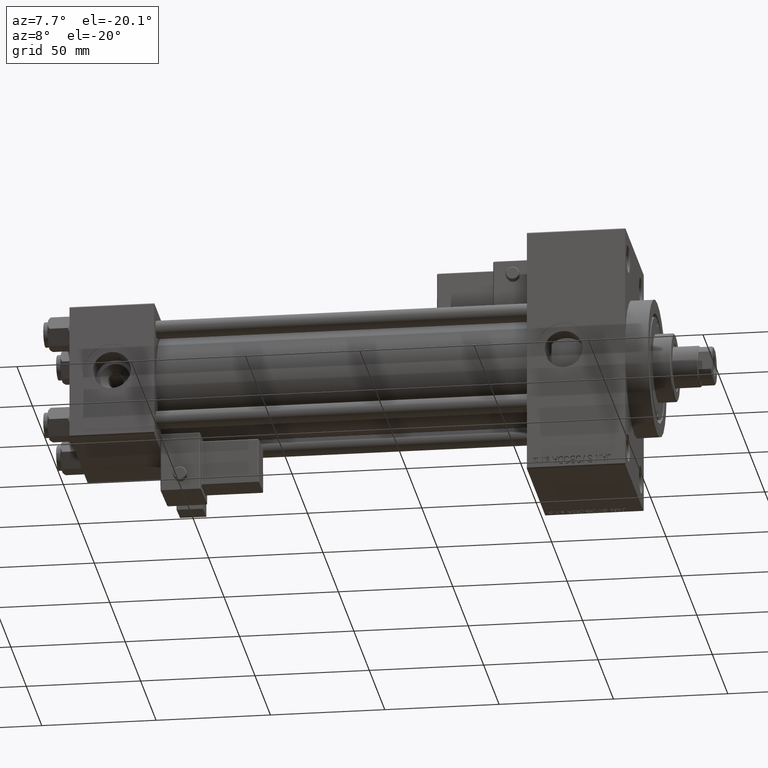
[diagram: clean part render]
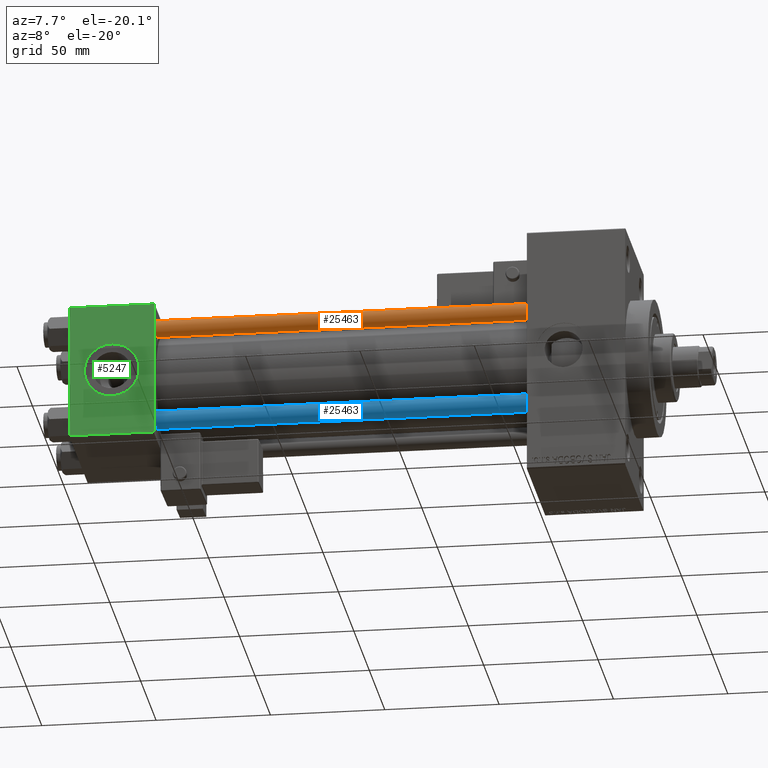
[diagram: same view with three faces highlighted in distinct colors, each labeled with its STEP entity id]
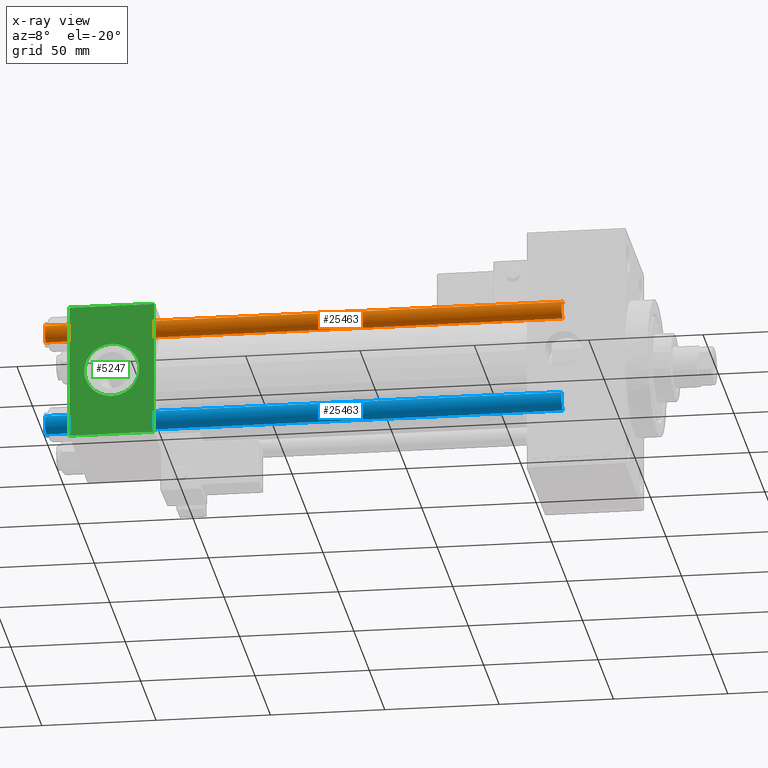
[diagram: x-ray of the same camera — body ghosted, the three highlighted faces saturated]
A machine part, auxiliary view with three faces highlighted in distinct colors.
The next image is the same camera in x-ray (body ghosted, the three faces saturated) — at least one of them is partly hidden behind the body in this view.
Their STEP definitions:

[orange] entity #25463 — the highlighted cylindrical surface (edge-blend (fillet) strip) has radius 4 mm, axis along (1, 0, 0).
#1288 = DIRECTION ( 'NONE',  ( -0.000000000000000000, -0.000000000000000000, -1.000000000000000000 ) ) ;
#2327 = DIRECTION ( 'NONE',  ( -0.000000000000000000, -0.000000000000000000, 1.000000000000000000 ) ) ;
#7870 = DIRECTION ( 'NONE',  ( -0.000000000000000000, -0.000000000000000000, -1.000000000000000000 ) ) ;
#8381 = CARTESIAN_POINT ( 'NONE',  ( 0.000000000000000000, 0.000000000000000000, 226.5000000000001421 ) ) ;
#9537 = AXIS2_PLACEMENT_3D ( 'NONE', #8381, #16213, #32171 ) ;
#9989 = VERTEX_POINT ( 'NONE', #14522 ) ;
#12705 = EDGE_CURVE ( 'NONE', #9989, #21395, #22686, .T. ) ;
#13389 = LINE ( 'NONE', #13898, #16597 ) ;
#13898 = CARTESIAN_POINT ( 'NONE',  ( 4.000000000000000000, 4.898587196589411843E-16, 227.0000000000000000 ) ) ;
#14077 = LINE ( 'NONE', #33953, #37901 ) ;
#14522 = CARTESIAN_POINT ( 'NONE',  ( 4.000000000000000000, 4.898587196589411843E-16, 0.5000000000002224887 ) ) ;
#14526 = CIRCLE ( 'NONE', #9537, 4.000000000000000000 ) ;
#16213 = DIRECTION ( 'NONE',  ( 0.000000000000000000, 0.000000000000000000, -1.000000000000000000 ) ) ;
#16597 = VECTOR ( 'NONE', #25428, 1000.000000000000000 ) ;
#18249 = DIRECTION ( 'NONE',  ( 1.000000000000000000, 0.000000000000000000, 0.000000000000000000 ) ) ;
#19153 = VERTEX_POINT ( 'NONE', #50132 ) ;
#20955 = EDGE_CURVE ( 'NONE', #31999, #19153, #14526, .T. ) ;
#21145 = EDGE_CURVE ( 'NONE', #31999, #21395, #14077, .T. ) ;
#21395 = VERTEX_POINT ( 'NONE', #33886 ) ;
#22686 = CIRCLE ( 'NONE', #46048, 4.000000000000000000 ) ;
#25428 = DIRECTION ( 'NONE',  ( -0.000000000000000000, -0.000000000000000000, -1.000000000000000000 ) ) ;
#25463 = ADVANCED_FACE ( 'NONE', ( #27224 ), #47602, .T. ) ;
#26136 = CARTESIAN_POINT ( 'NONE',  ( 0.000000000000000000, 0.000000000000000000, 0.5000000000002224887 ) ) ;
#27224 = FACE_OUTER_BOUND ( 'NONE', #36371, .T. ) ;
#29228 = ORIENTED_EDGE ( 'NONE', *, *, #36281, .T. ) ;
#29358 = ORIENTED_EDGE ( 'NONE', *, *, #21145, .F. ) ;
#29680 = AXIS2_PLACEMENT_3D ( 'NONE', #47088, #7870, #31928 ) ;
#30257 = ORIENTED_EDGE ( 'NONE', *, *, #20955, .T. ) ;
#31928 = DIRECTION ( 'NONE',  ( -1.000000000000000000, 0.000000000000000000, 0.000000000000000000 ) ) ;
#31999 = VERTEX_POINT ( 'NONE', #49552 ) ;
#32171 = DIRECTION ( 'NONE',  ( 1.000000000000000000, 0.000000000000000000, 0.000000000000000000 ) ) ;
#33886 = CARTESIAN_POINT ( 'NONE',  ( -4.000000000000000000, 0.000000000000000000, 0.5000000000002224887 ) ) ;
#33953 = CARTESIAN_POINT ( 'NONE',  ( -4.000000000000000000, 0.000000000000000000, 227.0000000000000000 ) ) ;
#36281 = EDGE_CURVE ( 'NONE', #19153, #9989, #13389, .T. ) ;
#36371 = EDGE_LOOP ( 'NONE', ( #30257, #29228, #41179, #29358 ) ) ;
#37901 = VECTOR ( 'NONE', #1288, 1000.000000000000000 ) ;
#41179 = ORIENTED_EDGE ( 'NONE', *, *, #12705, .T. ) ;
#46048 = AXIS2_PLACEMENT_3D ( 'NONE', #26136, #2327, #18249 ) ;
#47088 = CARTESIAN_POINT ( 'NONE',  ( 0.000000000000000000, 0.000000000000000000, 227.0000000000000000 ) ) ;
#47602 = CYLINDRICAL_SURFACE ( 'NONE', #29680, 4.000000000000000000 ) ;
#49552 = CARTESIAN_POINT ( 'NONE',  ( -4.000000000000000000, 0.000000000000000000, 226.5000000000001421 ) ) ;
#50132 = CARTESIAN_POINT ( 'NONE',  ( 4.000000000000000000, 4.898587196589411843E-16, 226.5000000000001421 ) ) ;

[blue] entity #25463 — the highlighted cylindrical surface (edge-blend (fillet) strip) has radius 4 mm, axis along (-1, 0, 0).
#1288 = DIRECTION ( 'NONE',  ( -0.000000000000000000, -0.000000000000000000, -1.000000000000000000 ) ) ;
#2327 = DIRECTION ( 'NONE',  ( -0.000000000000000000, -0.000000000000000000, 1.000000000000000000 ) ) ;
#7870 = DIRECTION ( 'NONE',  ( -0.000000000000000000, -0.000000000000000000, -1.000000000000000000 ) ) ;
#8381 = CARTESIAN_POINT ( 'NONE',  ( 0.000000000000000000, 0.000000000000000000, 226.5000000000001421 ) ) ;
#9537 = AXIS2_PLACEMENT_3D ( 'NONE', #8381, #16213, #32171 ) ;
#9989 = VERTEX_POINT ( 'NONE', #14522 ) ;
#12705 = EDGE_CURVE ( 'NONE', #9989, #21395, #22686, .T. ) ;
#13389 = LINE ( 'NONE', #13898, #16597 ) ;
#13898 = CARTESIAN_POINT ( 'NONE',  ( 4.000000000000000000, 4.898587196589411843E-16, 227.0000000000000000 ) ) ;
#14077 = LINE ( 'NONE', #33953, #37901 ) ;
#14522 = CARTESIAN_POINT ( 'NONE',  ( 4.000000000000000000, 4.898587196589411843E-16, 0.5000000000002224887 ) ) ;
#14526 = CIRCLE ( 'NONE', #9537, 4.000000000000000000 ) ;
#16213 = DIRECTION ( 'NONE',  ( 0.000000000000000000, 0.000000000000000000, -1.000000000000000000 ) ) ;
#16597 = VECTOR ( 'NONE', #25428, 1000.000000000000000 ) ;
#18249 = DIRECTION ( 'NONE',  ( 1.000000000000000000, 0.000000000000000000, 0.000000000000000000 ) ) ;
#19153 = VERTEX_POINT ( 'NONE', #50132 ) ;
#20955 = EDGE_CURVE ( 'NONE', #31999, #19153, #14526, .T. ) ;
#21145 = EDGE_CURVE ( 'NONE', #31999, #21395, #14077, .T. ) ;
#21395 = VERTEX_POINT ( 'NONE', #33886 ) ;
#22686 = CIRCLE ( 'NONE', #46048, 4.000000000000000000 ) ;
#25428 = DIRECTION ( 'NONE',  ( -0.000000000000000000, -0.000000000000000000, -1.000000000000000000 ) ) ;
#25463 = ADVANCED_FACE ( 'NONE', ( #27224 ), #47602, .T. ) ;
#26136 = CARTESIAN_POINT ( 'NONE',  ( 0.000000000000000000, 0.000000000000000000, 0.5000000000002224887 ) ) ;
#27224 = FACE_OUTER_BOUND ( 'NONE', #36371, .T. ) ;
#29228 = ORIENTED_EDGE ( 'NONE', *, *, #36281, .T. ) ;
#29358 = ORIENTED_EDGE ( 'NONE', *, *, #21145, .F. ) ;
#29680 = AXIS2_PLACEMENT_3D ( 'NONE', #47088, #7870, #31928 ) ;
#30257 = ORIENTED_EDGE ( 'NONE', *, *, #20955, .T. ) ;
#31928 = DIRECTION ( 'NONE',  ( -1.000000000000000000, 0.000000000000000000, 0.000000000000000000 ) ) ;
#31999 = VERTEX_POINT ( 'NONE', #49552 ) ;
#32171 = DIRECTION ( 'NONE',  ( 1.000000000000000000, 0.000000000000000000, 0.000000000000000000 ) ) ;
#33886 = CARTESIAN_POINT ( 'NONE',  ( -4.000000000000000000, 0.000000000000000000, 0.5000000000002224887 ) ) ;
#33953 = CARTESIAN_POINT ( 'NONE',  ( -4.000000000000000000, 0.000000000000000000, 227.0000000000000000 ) ) ;
#36281 = EDGE_CURVE ( 'NONE', #19153, #9989, #13389, .T. ) ;
#36371 = EDGE_LOOP ( 'NONE', ( #30257, #29228, #41179, #29358 ) ) ;
#37901 = VECTOR ( 'NONE', #1288, 1000.000000000000000 ) ;
#41179 = ORIENTED_EDGE ( 'NONE', *, *, #12705, .T. ) ;
#46048 = AXIS2_PLACEMENT_3D ( 'NONE', #26136, #2327, #18249 ) ;
#47088 = CARTESIAN_POINT ( 'NONE',  ( 0.000000000000000000, 0.000000000000000000, 227.0000000000000000 ) ) ;
#47602 = CYLINDRICAL_SURFACE ( 'NONE', #29680, 4.000000000000000000 ) ;
#49552 = CARTESIAN_POINT ( 'NONE',  ( -4.000000000000000000, 0.000000000000000000, 226.5000000000001421 ) ) ;
#50132 = CARTESIAN_POINT ( 'NONE',  ( 4.000000000000000000, 4.898587196589411843E-16, 226.5000000000001421 ) ) ;

[green] entity #5247 — the highlighted planar face has unit normal (0, 1, 0).
#1981 = FACE_OUTER_BOUND ( 'NONE', #20348, .T. ) ;
#2280 = DIRECTION ( 'NONE',  ( 0.000000000000000000, -1.000000000000000000, -8.673617379884036705E-17 ) ) ;
#3313 = DIRECTION ( 'NONE',  ( 0.000000000000000000, 0.000000000000000000, -1.000000000000000000 ) ) ;
#3455 = CARTESIAN_POINT ( 'NONE',  ( 37.00000000000000000, -30.00000000000000000, 29.49999999999999289 ) ) ;
#3561 = EDGE_CURVE ( 'NONE', #31333, #5354, #27245, .T. ) ;
#3853 = VECTOR ( 'NONE', #4189, 1000.000000000000000 ) ;
#4189 = DIRECTION ( 'NONE',  ( 0.000000000000000000, 0.000000000000000000, -1.000000000000000000 ) ) ;
#4959 = CARTESIAN_POINT ( 'NONE',  ( 0.000000000000000000, -30.00000000000000000, 29.49999999999999289 ) ) ;
#5247 = ADVANCED_FACE ( 'NONE', ( #34642, #1981 ), #14759, .F. ) ;
#5354 = VERTEX_POINT ( 'NONE', #4959 ) ;
#5559 = EDGE_CURVE ( 'NONE', #31333, #6257, #34714, .T. ) ;
#6257 = VERTEX_POINT ( 'NONE', #15416 ) ;
#6298 = CIRCLE ( 'NONE', #35509, 12.00000000000000178 ) ;
#9764 = VECTOR ( 'NONE', #34305, 1000.000000000000000 ) ;
#10855 = CARTESIAN_POINT ( 'NONE',  ( 37.00000000000000000, -30.00000000000000000, 29.99999999999999289 ) ) ;
#14759 = PLANE ( 'NONE',  #30708 ) ;
#15416 = CARTESIAN_POINT ( 'NONE',  ( 37.00000000000000000, -30.00000000000000000, -29.50000000000001776 ) ) ;
#16141 = VERTEX_POINT ( 'NONE', #50915 ) ;
#17514 = CARTESIAN_POINT ( 'NONE',  ( 0.000000000000000000, -30.00000000000000000, -29.50000000000001776 ) ) ;
#20348 = EDGE_LOOP ( 'NONE', ( #39615, #43017, #39656, #50680 ) ) ;
#20500 = CARTESIAN_POINT ( 'NONE',  ( 37.00000000000000000, -30.00000000000000000, 29.99999999999999289 ) ) ;
#23702 = EDGE_CURVE ( 'NONE', #36532, #16141, #6298, .T. ) ;
#24353 = CARTESIAN_POINT ( 'NONE',  ( 18.50000000000000000, -30.00000000000000000, 12.00000000000000178 ) ) ;
#25085 = CARTESIAN_POINT ( 'NONE',  ( 18.50000000000000000, -30.00000000000000000, 0.000000000000000000 ) ) ;
#25781 = ORIENTED_EDGE ( 'NONE', *, *, #39778, .F. ) ;
#27245 = LINE ( 'NONE', #3455, #9764 ) ;
#28989 = LINE ( 'NONE', #32143, #33848 ) ;
#29268 = DIRECTION ( 'NONE',  ( 0.000000000000000000, -1.000000000000000000, -8.673617379884036705E-17 ) ) ;
#29578 = CARTESIAN_POINT ( 'NONE',  ( 37.00000000000000000, -30.00000000000000000, 29.49999999999999289 ) ) ;
#30077 = EDGE_CURVE ( 'NONE', #43428, #6257, #28989, .T. ) ;
#30708 = AXIS2_PLACEMENT_3D ( 'NONE', #10855, #42488, #37792 ) ;
#30846 = EDGE_CURVE ( 'NONE', #5354, #43428, #39984, .T. ) ;
#31333 = VERTEX_POINT ( 'NONE', #29578 ) ;
#31496 = DIRECTION ( 'NONE',  ( 0.000000000000000000, 0.000000000000000000, -1.000000000000000000 ) ) ;
#32143 = CARTESIAN_POINT ( 'NONE',  ( 37.00000000000000000, -30.00000000000000000, -29.50000000000001776 ) ) ;
#32410 = CARTESIAN_POINT ( 'NONE',  ( 0.000000000000000000, -30.00000000000000000, 29.99999999999999289 ) ) ;
#33848 = VECTOR ( 'NONE', #40746, 1000.000000000000000 ) ;
#34305 = DIRECTION ( 'NONE',  ( -1.000000000000000000, 0.000000000000000000, 0.000000000000000000 ) ) ;
#34642 = FACE_BOUND ( 'NONE', #48867, .T. ) ;
#34714 = LINE ( 'NONE', #20500, #49876 ) ;
#35509 = AXIS2_PLACEMENT_3D ( 'NONE', #25085, #29268, #45207 ) ;
#36532 = VERTEX_POINT ( 'NONE', #24353 ) ;
#37792 = DIRECTION ( 'NONE',  ( 0.000000000000000000, -0.000000000000000000, 1.000000000000000000 ) ) ;
#39326 = ORIENTED_EDGE ( 'NONE', *, *, #23702, .F. ) ;
#39615 = ORIENTED_EDGE ( 'NONE', *, *, #30846, .T. ) ;
#39656 = ORIENTED_EDGE ( 'NONE', *, *, #5559, .F. ) ;
#39778 = EDGE_CURVE ( 'NONE', #16141, #36532, #51634, .T. ) ;
#39984 = LINE ( 'NONE', #32410, #3853 ) ;
#40746 = DIRECTION ( 'NONE',  ( 1.000000000000000000, 0.000000000000000000, 0.000000000000000000 ) ) ;
#40786 = AXIS2_PLACEMENT_3D ( 'NONE', #51147, #2280, #3313 ) ;
#42488 = DIRECTION ( 'NONE',  ( -0.000000000000000000, 1.000000000000000000, 0.000000000000000000 ) ) ;
#43017 = ORIENTED_EDGE ( 'NONE', *, *, #30077, .T. ) ;
#43428 = VERTEX_POINT ( 'NONE', #17514 ) ;
#45207 = DIRECTION ( 'NONE',  ( 0.000000000000000000, 0.000000000000000000, -1.000000000000000000 ) ) ;
#48867 = EDGE_LOOP ( 'NONE', ( #25781, #39326 ) ) ;
#49876 = VECTOR ( 'NONE', #31496, 1000.000000000000000 ) ;
#50680 = ORIENTED_EDGE ( 'NONE', *, *, #3561, .T. ) ;
#50915 = CARTESIAN_POINT ( 'NONE',  ( 18.50000000000000000, -30.00000000000000000, -12.00000000000000178 ) ) ;
#51147 = CARTESIAN_POINT ( 'NONE',  ( 18.50000000000000000, -30.00000000000000000, 0.000000000000000000 ) ) ;
#51634 = CIRCLE ( 'NONE', #40786, 12.00000000000000178 ) ;